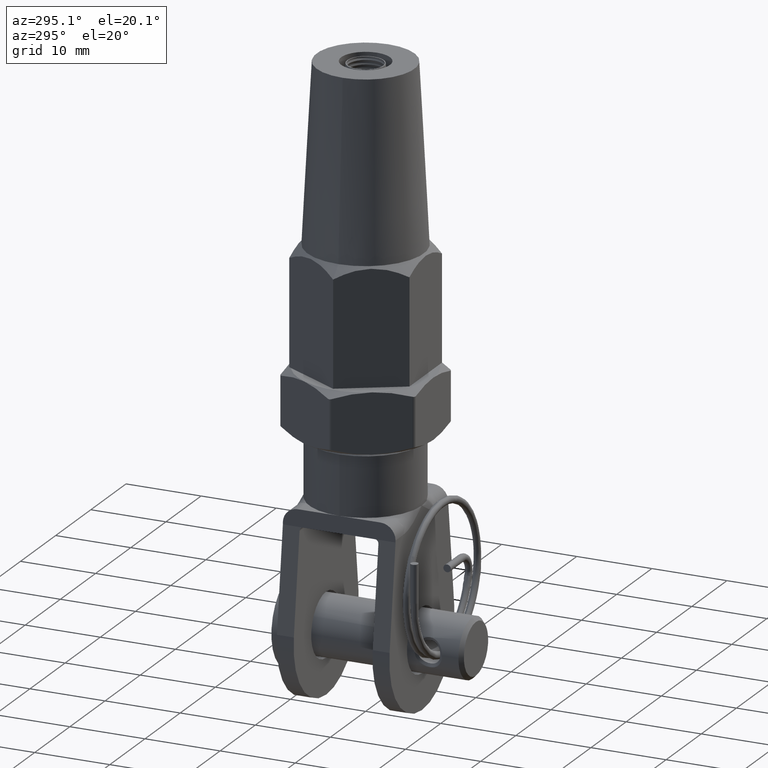
[diagram: clean part render]
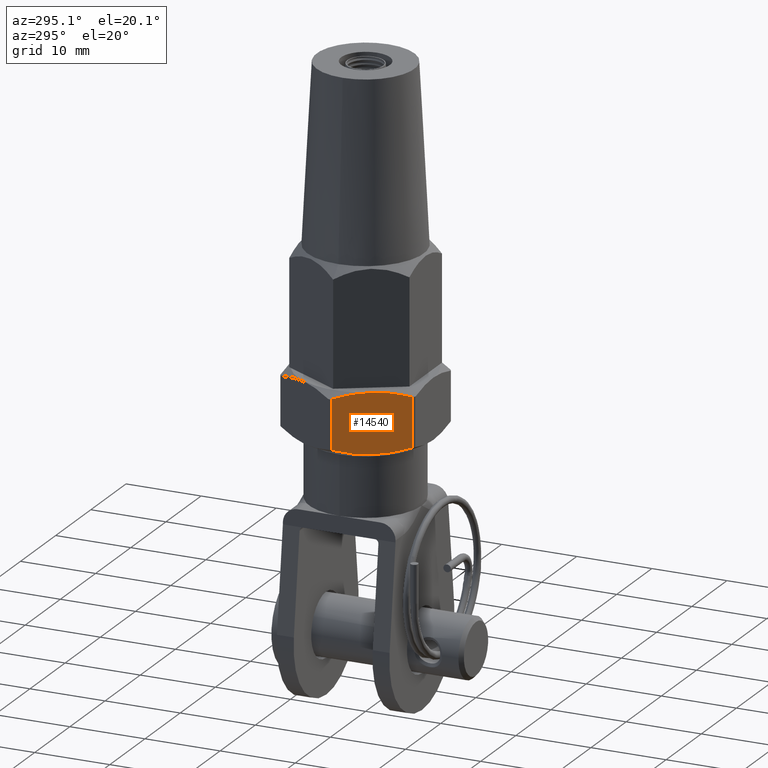
[diagram: same view with one face highlighted and labeled with its STEP entity id]
A machine part, auxiliary view. The second image highlights one B-rep face of the part: STEP entity #14540.
In plain terms, the highlighted planar face has unit normal (0.866, 0.5, 0).
Its self-contained STEP definition (entity closure, byte-faithful):
#216 = VECTOR ( 'NONE', #10819, 1000.000000000000000 ) ;
#306 = PLANE ( 'NONE',  #21500 ) ;
#417 = ORIENTED_EDGE ( 'NONE', *, *, #12003, .T. ) ;
#434 = EDGE_LOOP ( 'NONE', ( #15535, #6589, #417, #21572, #16242, #14785 ) ) ;
#1541 = CARTESIAN_POINT ( 'NONE',  ( -0.8281822442095214700, -4.000000000000000900, 9.000000000000001800 ) ) ;
#1701 = CARTESIAN_POINT ( 'NONE',  ( 0.8296020869229232500, 3.983414887810608400, 9.000000000000003600 ) ) ;
#2393 = CARTESIAN_POINT ( 'NONE',  ( -2.157593609653627700E-017, 4.000000000000000000, 9.000000000000001800 ) ) ;
#2402 = CARTESIAN_POINT ( 'NONE',  ( -5.196152422706628500, 4.000000000000000000, 9.000000000000001800 ) ) ;
#3180 = CARTESIAN_POINT ( 'NONE',  ( -3.288816569549545000, 3.682747072687407200, 9.000000000000000000 ) ) ;
#3973 = LINE ( 'NONE', #14293, #216 ) ;
#4351 = EDGE_CURVE ( 'NONE', #10324, #5058, #3973, .T. ) ;
#4484 = VECTOR ( 'NONE', #18558, 1000.000000000000000 ) ;
#4692 = EDGE_CURVE ( 'NONE', #5749, #10246, #15737, .T. ) ;
#5058 = VERTEX_POINT ( 'NONE', #22312 ) ;
#5749 = VERTEX_POINT ( 'NONE', #9348 ) ;
#6018 = CARTESIAN_POINT ( 'NONE',  ( 0.8296020869229249200, -3.983414887810608400, 9.000000000000001800 ) ) ;
#6051 = DIRECTION ( 'NONE',  ( -1.000000000000000000, 0.0000000000000000000, -0.0000000000000000000 ) ) ;
#6204 = B_SPLINE_CURVE_WITH_KNOTS ( 'NONE', 3,
 ( #10595, #18077, #12455, #22053, #1541, #14486 ),
 .UNSPECIFIED., .F., .F.,
 ( 4, 2, 4 ),
 ( 0.009569244818261595000, 0.01204826012510897700, 0.01452727543195635900 ),
 .UNSPECIFIED. ) ;
#6589 = ORIENTED_EDGE ( 'NONE', *, *, #13173, .T. ) ;
#7078 = CARTESIAN_POINT ( 'NONE',  ( -4.907477288112520600, 3.277725454518214000, 9.000000000000001800 ) ) ;
#7198 = CARTESIAN_POINT ( 'NONE',  ( 4.112868120402167100, 3.497351742855979500, 9.000000000000001800 ) ) ;
#7330 = EDGE_CURVE ( 'NONE', #5058, #5749, #6204, .T. ) ;
#8034 = CARTESIAN_POINT ( 'NONE',  ( 0.4141760059543868100, -4.000000000000000000, 9.000000000000001800 ) ) ;
#8968 = CARTESIAN_POINT ( 'NONE',  ( 0.4141760059543871400, 4.000000000000000900, 9.000000000000003600 ) ) ;
#9034 = VERTEX_POINT ( 'NONE', #2393 ) ;
#9348 = CARTESIAN_POINT ( 'NONE',  ( -2.157593609653627700E-017, -4.000000000000000000, 9.000000000000001800 ) ) ;
#9743 = CARTESIAN_POINT ( 'NONE',  ( 4.112868120402165300, -3.497351742855977700, 9.000000000000000000 ) ) ;
#10246 = VERTEX_POINT ( 'NONE', #16042 ) ;
#10324 = VERTEX_POINT ( 'NONE', #22537 ) ;
#10590 = CARTESIAN_POINT ( 'NONE',  ( 3.307931194506969600, 3.678975572753667900, 9.000000000000001800 ) ) ;
#10595 = CARTESIAN_POINT ( 'NONE',  ( -4.907477288112520600, -3.277725454518214000, 9.000000000000001800 ) ) ;
#10819 = DIRECTION ( 'NONE',  ( 0.0000000000000000000, -1.000000000000000000, 0.0000000000000000000 ) ) ;
#11557 = DIRECTION ( 'NONE',  ( 0.0000000000000000000, 0.0000000000000000000, -1.000000000000000000 ) ) ;
#12003 = EDGE_CURVE ( 'NONE', #21641, #9034, #16143, .T. ) ;
#12455 = CARTESIAN_POINT ( 'NONE',  ( -3.288816569549545000, -3.682747072687407200, 9.000000000000003600 ) ) ;
#13173 = EDGE_CURVE ( 'NONE', #10246, #21641, #20446, .T. ) ;
#13608 = CARTESIAN_POINT ( 'NONE',  ( 2.077909254367578100, -3.868190493171379100, 9.000000000000000000 ) ) ;
#14222 = CARTESIAN_POINT ( 'NONE',  ( 4.907477288111819800, 3.277725454518407100, 9.000000000000001800 ) ) ;
#14293 = CARTESIAN_POINT ( 'NONE',  ( -4.907477288111816300, 4.000000000000000000, 9.000000000000001800 ) ) ;
#14486 = CARTESIAN_POINT ( 'NONE',  ( -2.157593609653627700E-017, -4.000000000000000000, 9.000000000000001800 ) ) ;
#14540 = ADVANCED_FACE ( 'NONE', ( #19267 ), #306, .F. ) ;
#14785 = ORIENTED_EDGE ( 'NONE', *, *, #7330, .T. ) ;
#15488 = CARTESIAN_POINT ( 'NONE',  ( 3.307931194506967800, -3.678975572753667900, 9.000000000000003600 ) ) ;
#15535 = ORIENTED_EDGE ( 'NONE', *, *, #4692, .T. ) ;
#15737 = B_SPLINE_CURVE_WITH_KNOTS ( 'NONE', 3,
 ( #21024, #8034, #6018, #21182, #13608, #15488, #9743, #19312 ),
 .UNSPECIFIED., .F., .F.,
 ( 4, 2, 2, 4 ),
 ( 0.01452727543195635900, 0.01576703716999005400, 0.01700679890802374700, 0.01948632238409113400 ),
 .UNSPECIFIED. ) ;
#16042 = CARTESIAN_POINT ( 'NONE',  ( 4.907477288111819800, -3.277725454518407100, 9.000000000000001800 ) ) ;
#16143 = B_SPLINE_CURVE_WITH_KNOTS ( 'NONE', 3,
 ( #21718, #7198, #10590, #18235, #19924, #1701, #8968, #21963 ),
 .UNSPECIFIED., .F., .F.,
 ( 4, 2, 2, 4 ),
 ( 0.004108879197986238700, 0.006582063681967028000, 0.007818655923957421700, 0.009055248165947816400 ),
 .UNSPECIFIED. ) ;
#16242 = ORIENTED_EDGE ( 'NONE', *, *, #4351, .T. ) ;
#16319 = CARTESIAN_POINT ( 'NONE',  ( -0.8281822442095211300, 4.000000000000000000, 9.000000000000001800 ) ) ;
#18077 = CARTESIAN_POINT ( 'NONE',  ( -4.106942565062357900, -3.498989538867592200, 9.000000000000001800 ) ) ;
#18204 = CARTESIAN_POINT ( 'NONE',  ( -4.106942565062359700, 3.498989538867594500, 9.000000000000001800 ) ) ;
#18235 = CARTESIAN_POINT ( 'NONE',  ( 2.077909254367578100, 3.868190493171378200, 9.000000000000000000 ) ) ;
#18558 = DIRECTION ( 'NONE',  ( -0.0000000000000000000, 1.000000000000000000, -0.0000000000000000000 ) ) ;
#19267 = FACE_OUTER_BOUND ( 'NONE', #434, .T. ) ;
#19312 = CARTESIAN_POINT ( 'NONE',  ( 4.907477288111819800, -3.277725454518407100, 9.000000000000001800 ) ) ;
#19924 = CARTESIAN_POINT ( 'NONE',  ( 1.662928211129581800, 3.917421879735613300, 9.000000000000003600 ) ) ;
#20446 = LINE ( 'NONE', #21962, #4484 ) ;
#20899 = B_SPLINE_CURVE_WITH_KNOTS ( 'NONE', 3,
 ( #23807, #16319, #23727, #3180, #18204, #7078 ),
 .UNSPECIFIED., .F., .F.,
 ( 4, 2, 4 ),
 ( 0.009055248165947816400, 0.01152792577986172200, 0.01400060339377562500 ),
 .UNSPECIFIED. ) ;
#21024 = CARTESIAN_POINT ( 'NONE',  ( -2.157593609653627700E-017, -4.000000000000000000, 9.000000000000001800 ) ) ;
#21182 = CARTESIAN_POINT ( 'NONE',  ( 1.662928211129583800, -3.917421879735612400, 8.999999999999998200 ) ) ;
#21500 = AXIS2_PLACEMENT_3D ( 'NONE', #2402, #11557, #6051 ) ;
#21572 = ORIENTED_EDGE ( 'NONE', *, *, #22109, .T. ) ;
#21641 = VERTEX_POINT ( 'NONE', #14222 ) ;
#21718 = CARTESIAN_POINT ( 'NONE',  ( 4.907477288111819800, 3.277725454518407100, 9.000000000000001800 ) ) ;
#21962 = CARTESIAN_POINT ( 'NONE',  ( 4.907477288111817200, 4.000000000000000000, 9.000000000000001800 ) ) ;
#21963 = CARTESIAN_POINT ( 'NONE',  ( -2.157593609653627700E-017, 4.000000000000000000, 9.000000000000001800 ) ) ;
#22053 = CARTESIAN_POINT ( 'NONE',  ( -1.651311822385414200, -3.932964796452362900, 9.000000000000000000 ) ) ;
#22109 = EDGE_CURVE ( 'NONE', #9034, #10324, #20899, .T. ) ;
#22312 = CARTESIAN_POINT ( 'NONE',  ( -4.907477288112520600, -3.277725454518214000, 9.000000000000001800 ) ) ;
#22537 = CARTESIAN_POINT ( 'NONE',  ( -4.907477288112520600, 3.277725454518214000, 9.000000000000001800 ) ) ;
#23727 = CARTESIAN_POINT ( 'NONE',  ( -1.651311822385415700, 3.932964796452362900, 9.000000000000003600 ) ) ;
#23807 = CARTESIAN_POINT ( 'NONE',  ( -2.157593609653627700E-017, 4.000000000000000000, 9.000000000000001800 ) ) ;